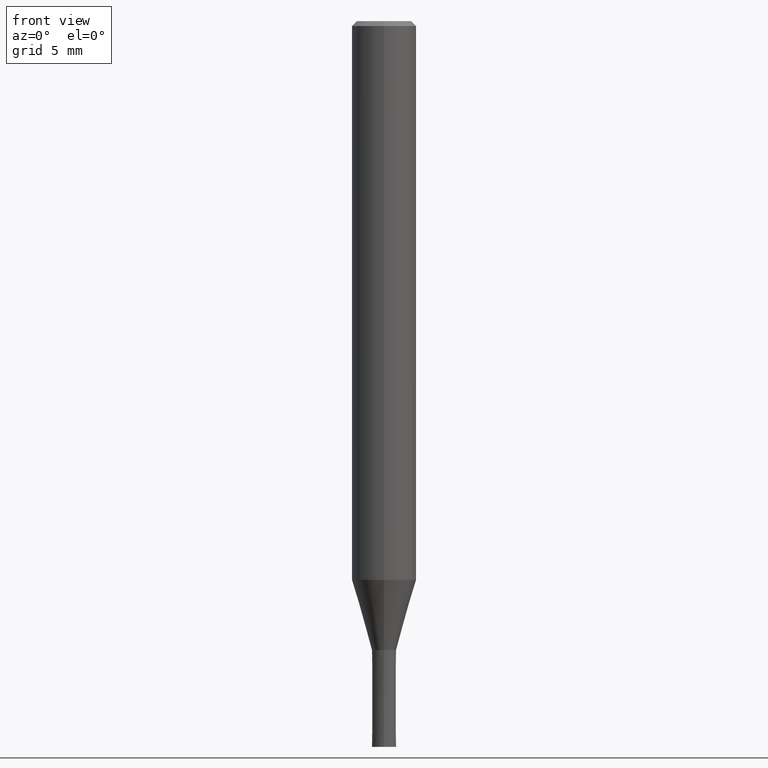
[diagram: clean part render]
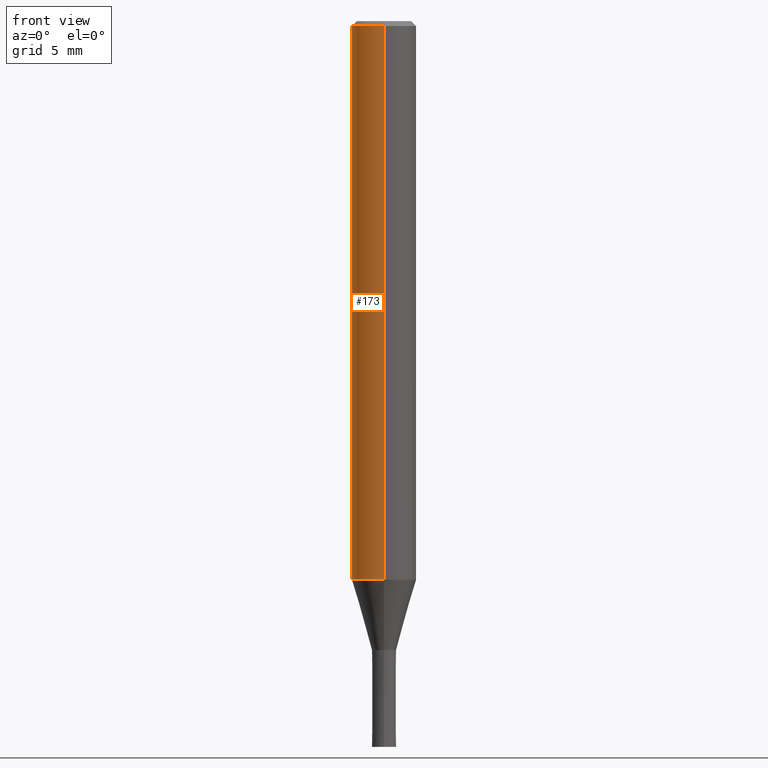
[diagram: same view with one face highlighted and labeled with its STEP entity id]
A machine part, front view. The second image highlights one B-rep face of the part: STEP entity #173.
In plain terms, the highlighted cylindrical surface (edge-blend (fillet) strip) has radius 2 mm, axis along (-0, -0, 1).
Its self-contained STEP definition (entity closure, byte-faithful):
#123=EDGE_CURVE('',#147,#233,#295,.T.);
#147=VERTEX_POINT('',#323);
#151=EDGE_CURVE('',#159,#197,#327,.T.);
#159=VERTEX_POINT('',#335);
#173=ADVANCED_FACE('',(#352),#353,.T.);
#181=EDGE_CURVE('',#147,#159,#361,.T.);
#197=VERTEX_POINT('',#382);
#233=VERTEX_POINT('',#422);
#251=EDGE_CURVE('',#197,#233,#444,.T.);
#295=CIRCLE('',#484,2.0);
#323=CARTESIAN_POINT('',(2.44921270764475E-016,-2.0,-34.641));
#327=CIRCLE('',#528,2.0);
#335=CARTESIAN_POINT('',(2.44921270764475E-016,-2.0,-0.299999999999997));
#352=FACE_OUTER_BOUND('',#559,.T.);
#353=CYLINDRICAL_SURFACE('',#560,2.0);
#361=LINE('',#570,#571);
#382=CARTESIAN_POINT('',(0.0,2.0,-0.299999999999997));
#422=CARTESIAN_POINT('',(0.0,2.0,-34.641));
#444=LINE('',#671,#672);
#484=AXIS2_PLACEMENT_3D('',#695,#696,#697);
#528=AXIS2_PLACEMENT_3D('',#745,#746,#747);
#559=EDGE_LOOP('',(#778,#779,#780,#781));
#560=AXIS2_PLACEMENT_3D('',#782,#783,#784);
#570=CARTESIAN_POINT('',(2.44921270764475E-016,-2.0,-17.4705));
#571=VECTOR('',#788,1.0);
#671=CARTESIAN_POINT('',(-2.44921270764475E-016,2.0,-17.4705));
#672=VECTOR('',#899,1.0);
#695=CARTESIAN_POINT('',(0.0,0.0,-34.641));
#696=DIRECTION('',(0.0,0.0,-1.0));
#697=DIRECTION('',(0.0,1.0,0.0));
#745=CARTESIAN_POINT('',(0.0,0.0,-0.299999999999997));
#746=DIRECTION('',(0.0,0.0,-1.0));
#747=DIRECTION('',(0.0,1.0,0.0));
#778=ORIENTED_EDGE('',*,*,#251,.T.);
#779=ORIENTED_EDGE('',*,*,#123,.F.);
#780=ORIENTED_EDGE('',*,*,#181,.T.);
#781=ORIENTED_EDGE('',*,*,#151,.T.);
#782=CARTESIAN_POINT('',(0.0,0.0,-17.4705));
#783=DIRECTION('',(-0.0,-0.0,1.0));
#784=DIRECTION('',(0.0,1.0,0.0));
#788=DIRECTION('',(-0.0,-0.0,1.0));
#899=DIRECTION('',(0.0,0.0,-1.0));